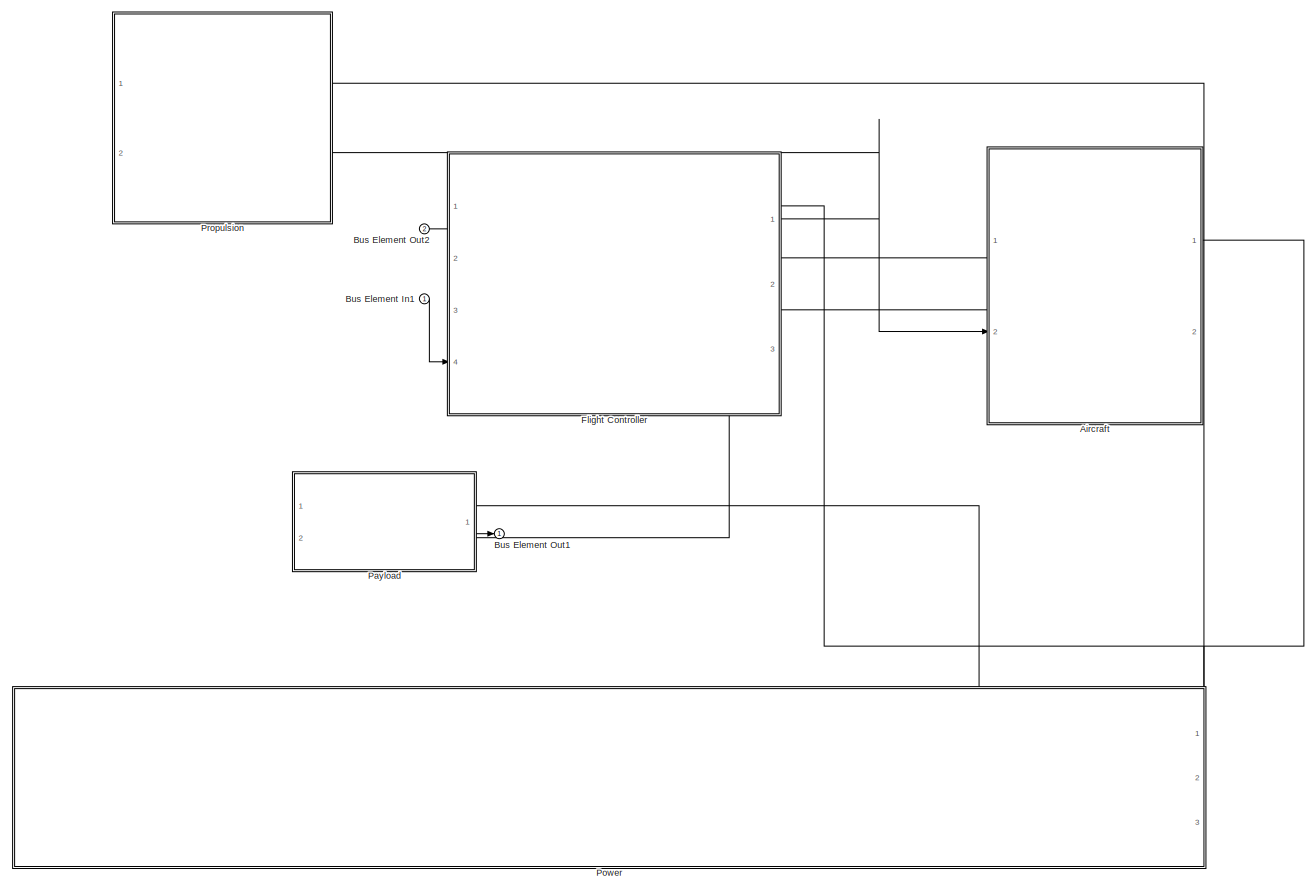
[diagram: root canvas - part 1/1, most of the canvas]
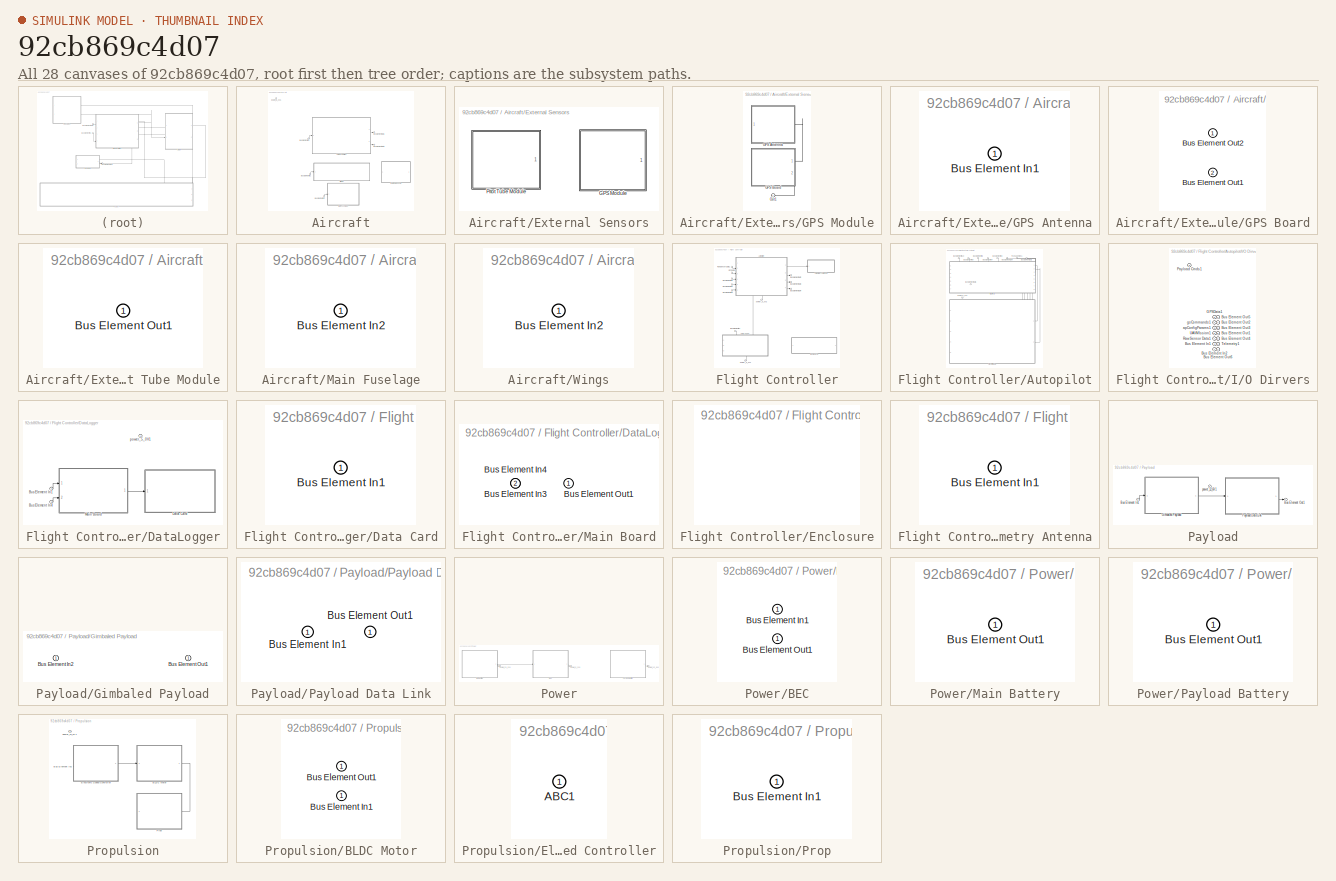
[diagram: thumbnail index - all 28 canvases of the model, root first then tree order]
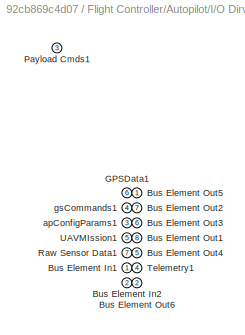
MODEL slx_92cb869c4d07
KIND model
CONFIG AbsTol = auto
CONFIG EnableMultiTasking = off
CONFIG FixedStep = auto
CONFIG MaxStep = auto
CONFIG MinStep = auto
CONFIG RelTol = 1e-3
CONFIG SampleTimeConstraint = Unconstrained
CONFIG Solver = VariableStepAuto
CONFIG SolverName = VariableStepAuto
CONFIG StartTime = 0.0
CONFIG StopTime = 10.0
WORKSPACE source: MAT-file member
WORKSPACE Var = 0
BLOCK [SubSystem] Aircraft
  PortSchema = {"entries":[{"content":{"headerSize":26,"margin":15,"minimumSpacing":25,"sides":[{"content":{"connectorIds":["In2","Out1","Out2"]},"type":"ConnectorPlacement.EquallySpacedRectSide","uuid":"5864bfaa-27bf-4dc4-ac35-2a67754e9235"},{"content":{"connectorIds":[],"side":"RIGHT"},"type":"ConnectorPlacement.EquallySpacedRectSide","uuid":"1b67a812-6201-4dd3-b7dd-96f38505ac3f"},{"content":{"connectorIds":[]...<+452ch>
  Ports = [2, 2]
  RequestExecContextInheritance = off
BLOCK [ModelReference] Aircraft/Aerodynamics
  ModelNameDialog = PlantModel
  ModelReferenceVersion = 1.375
  PortSchema = {"entries":[{"content":{"headerSize":38,"margin":15,"minimumSpacing":25,"sides":[{"content":{"connectorIds":["In1"]},"type":"ConnectorPlacement.EquallySpacedRectSide","uuid":"5864bfaa-27bf-4dc4-ac35-2a67754e9235"},{"content":{"connectorIds":["Out1","Out2"],"side":"RIGHT"},"type":"ConnectorPlacement.EquallySpacedRectSide","uuid":"1b67a812-6201-4dd3-b7dd-96f38505ac3f"},{"content":{"connectorIds":[],...<+302ch>
  Ports = [1, 2]
BLOCK [Inport] Aircraft/Bus Element In1
  IconDisplay = Port number
  Port = 2
BLOCK [Inport] Aircraft/Bus Element In2
  IconDisplay = Port number
  Port = 2
BLOCK [Inport] Aircraft/Bus Element In3
  IconDisplay = Port number
  Port = 2
BLOCK [Outport] Aircraft/Bus Element Out1
  IconDisplay = Port number
BLOCK [Outport] Aircraft/Bus Element Out2
  IconDisplay = Port number
  Port = 2
BLOCK [SubSystem] Aircraft/External Sensors
  PortSchema = {"entries":[{"content":{"headerSize":26,"margin":15,"minimumSpacing":25,"sides":[{"content":{"connectorIds":[]},"type":"ConnectorPlacement.EquallySpacedRectSide","uuid":"62bd5ee8-2365-4a2b-9d30-43e6a529a901"},{"content":{"connectorIds":[],"side":"RIGHT"},"type":"ConnectorPlacement.EquallySpacedRectSide","uuid":"ad573e81-da6c-48c9-9164-7d3bad2ceb97"},{"content":{"connectorIds":[],"side":"TOP"},"typ...<+284ch>
  Ports = []
  RequestExecContextInheritance = off
BLOCK [SubSystem] Aircraft/External Sensors/GPS Module
  PortSchema = {"entries":[{"content":{"headerSize":26,"margin":15,"minimumSpacing":25,"sides":[{"content":{"connectorIds":[]},"type":"ConnectorPlacement.EquallySpacedRectSide","uuid":"9f35dc00-989c-4612-aee9-27ffd041f5d2"},{"content":{"connectorIds":[],"side":"RIGHT"},"type":"ConnectorPlacement.EquallySpacedRectSide","uuid":"fc636a36-c80d-4d26-be49-cb148246bb8f"},{"content":{"connectorIds":[],"side":"TOP"},"typ...<+434ch>
  Ports = [0, 1]
  RequestExecContextInheritance = off
BLOCK [SubSystem] Aircraft/External Sensors/GPS Module/GPS Antenna
  PortSchema = {"entries":[{"content":{"headerSize":26,"margin":15,"minimumSpacing":25,"sides":[{"content":{"connectorIds":[]},"type":"ConnectorPlacement.EquallySpacedRectSide","uuid":"1d3f3a23-636b-441d-85a6-b75e05b18389"},{"content":{"connectorIds":["In1"],"side":"RIGHT"},"type":"ConnectorPlacement.EquallySpacedRectSide","uuid":"e22d7e46-f58c-4c9d-8892-998381cd60e3"},{"content":{"connectorIds":[],"side":"TOP"}...<+289ch>
  Ports = [1]
  RequestExecContextInheritance = off
BLOCK [Inport] Aircraft/External Sensors/GPS Module/GPS Antenna/Bus Element In1
  IconDisplay = Port number
BLOCK [SubSystem] Aircraft/External Sensors/GPS Module/GPS Board
  PortSchema = {"entries":[{"content":{"headerSize":26,"margin":15,"minimumSpacing":25,"sides":[{"content":{"connectorIds":[]},"type":"ConnectorPlacement.EquallySpacedRectSide","uuid":"288187f8-f80a-4535-8eff-6998f4e932c0"},{"content":{"connectorIds":["Out1"],"side":"RIGHT"},"type":"ConnectorPlacement.EquallySpacedRectSide","uuid":"d1e22774-cdd2-4e71-94b1-3e938d9d16f6"},{"content":{"connectorIds":[],"side":"TOP"...<+440ch>
  Ports = [0, 2]
  RequestExecContextInheritance = off
BLOCK [Outport] Aircraft/External Sensors/GPS Module/GPS Board/Bus Element Out1
  IconDisplay = Port number
  Port = 2
BLOCK [Outport] Aircraft/External Sensors/GPS Module/GPS Board/Bus Element Out2
  IconDisplay = Port number
BLOCK [Outport] Aircraft/External Sensors/GPS Module/Out1
  IconDisplay = Port number
BLOCK [SubSystem] Aircraft/External Sensors/Pitot Tube Module
  PortSchema = {"entries":[{"content":{"headerSize":26,"margin":15,"minimumSpacing":25,"sides":[{"content":{"connectorIds":[]},"type":"ConnectorPlacement.EquallySpacedRectSide","uuid":"288187f8-f80a-4535-8eff-6998f4e932c0"},{"content":{"connectorIds":[],"side":"RIGHT"},"type":"ConnectorPlacement.EquallySpacedRectSide","uuid":"d1e22774-cdd2-4e71-94b1-3e938d9d16f6"},{"content":{"connectorIds":[],"side":"TOP"},"typ...<+434ch>
  Ports = [0, 1]
  RequestExecContextInheritance = off
BLOCK [Outport] Aircraft/External Sensors/Pitot Tube Module/Bus Element Out1
  IconDisplay = Port number
BLOCK [SubSystem] Aircraft/Main Fuselage
  PortSchema = {"entries":[{"content":{"headerSize":26,"margin":15,"minimumSpacing":25,"sides":[{"content":{"connectorIds":["In1"]},"type":"ConnectorPlacement.EquallySpacedRectSide","uuid":"410c5b0f-08b5-48c1-aeab-ad32707f18cb"},{"content":{"connectorIds":[],"side":"RIGHT"},"type":"ConnectorPlacement.EquallySpacedRectSide","uuid":"175f376c-06cb-43d8-93cf-cfe74288c6ca"},{"content":{"connectorIds":[],"side":"TOP"}...<+289ch>  <repeated x3 — deduplicated; at blocks: Main Fuselage, Wings, Data Card>
  Ports = [1]
  RequestExecContextInheritance = off
BLOCK [Inport] Aircraft/Main Fuselage/Bus Element In2
  IconDisplay = Port number
BLOCK [SubSystem] Aircraft/Wings
  Ports = [1]
  RequestExecContextInheritance = off
BLOCK [Inport] Aircraft/Wings/Bus Element In2
  IconDisplay = Port number
BLOCK [Inport] Aircraft/power_5_0V1
  IconDisplay = Port number
BLOCK [Inport] Bus Element In1
  IconDisplay = Port number
BLOCK [Outport] Bus Element Out1
  IconDisplay = Port number
BLOCK [Outport] Bus Element Out2
  IconDisplay = Port number
  Port = 2
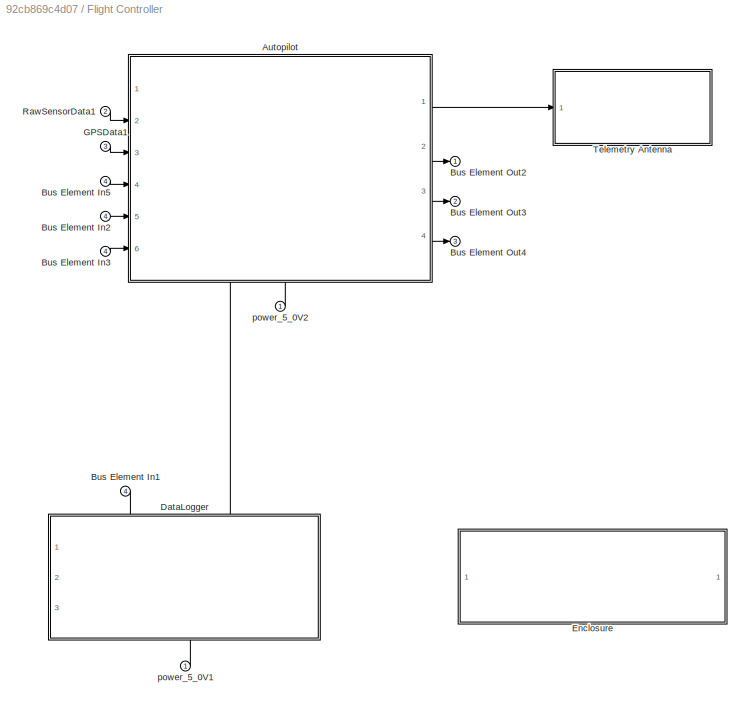
BLOCK [SubSystem] Flight Controller
  PortSchema = {"entries":[{"content":{"headerSize":26,"margin":15,"minimumSpacing":25,"sides":[{"content":{"connectorIds":["Out3","In4","Out2"]},"type":"ConnectorPlacement.EquallySpacedRectSide","uuid":"288187f8-f80a-4535-8eff-6998f4e932c0"},{"content":{"connectorIds":["Out1","In2","In3"],"side":"RIGHT"},"type":"ConnectorPlacement.EquallySpacedRectSide","uuid":"d1e22774-cdd2-4e71-94b1-3e938d9d16f6"},{"content":...<+470ch>
  Ports = [4, 3]
  RequestExecContextInheritance = off
BLOCK [SubSystem] Flight Controller/Autopilot
  PortSchema = {"entries":[{"content":{"headerSize":26,"margin":15,"minimumSpacing":25,"sides":[{"content":{"connectorIds":["In2","In3","In4","In5","In6"]},"type":"ConnectorPlacement.EquallySpacedRectSide","uuid":"288187f8-f80a-4535-8eff-6998f4e932c0"},{"content":{"connectorIds":["Out1","Out2","Out4","Out3"],"side":"RIGHT"},"type":"ConnectorPlacement.EquallySpacedRectSide","uuid":"d1e22774-cdd2-4e71-94b1-3e938d9...<+489ch>
  Ports = [6, 4]
  RequestExecContextInheritance = off
BLOCK [Inport] Flight Controller/Autopilot/Bus Element In10
  IconDisplay = Port number
  Port = 6
BLOCK [Inport] Flight Controller/Autopilot/Bus Element In3
  IconDisplay = Port number
  Port = 2
BLOCK [Inport] Flight Controller/Autopilot/Bus Element In7
  IconDisplay = Port number
  Port = 3
BLOCK [Inport] Flight Controller/Autopilot/Bus Element In8
  IconDisplay = Port number
  Port = 4
BLOCK [Inport] Flight Controller/Autopilot/Bus Element In9
  IconDisplay = Port number
  Port = 5
BLOCK [Outport] Flight Controller/Autopilot/Bus Element Out2
  IconDisplay = Port number
  Port = 2
BLOCK [Outport] Flight Controller/Autopilot/Bus Element Out4
  IconDisplay = Port number
  Port = 3
BLOCK [Outport] Flight Controller/Autopilot/Bus Element Out5
  IconDisplay = Port number
BLOCK [ModelReference] Flight Controller/Autopilot/Flight Firmware
  ModelNameDialog = AutopilotControlSystem
  ModelReferenceVersion = 1.361
  PortSchema = {"entries":[{"content":{"headerSize":38,"margin":15,"minimumSpacing":25,"sides":[{"content":{"connectorIds":["In1","In2","In3","In4","In5"]},"type":"ConnectorPlacement.EquallySpacedRectSide","uuid":"76636d8c-2a71-4cfe-9798-180c72f47694"},{"content":{"connectorIds":["Out1","Out2"],"side":"RIGHT"},"type":"ConnectorPlacement.EquallySpacedRectSide","uuid":"872f7c71-0239-4d56-8641-47d463e7d626"},{"cont...<+326ch>
  Ports = [5, 2]
BLOCK [SubSystem] Flight Controller/Autopilot/I//O Dirvers
  PortSchema = {"entries":[{"content":{"headerSize":26,"margin":15,"minimumSpacing":25,"sides":[{"content":{"connectorIds":["Out1","Out5","Out6","Out7","Out8"]},"type":"ConnectorPlacement.EquallySpacedRectSide","uuid":"76636d8c-2a71-4cfe-9798-180c72f47694"},{"content":{"connectorIds":["In2","In1"],"side":"RIGHT"},"type":"ConnectorPlacement.EquallySpacedRectSide","uuid":"872f7c71-0239-4d56-8641-47d463e7d626"},{"c...<+523ch>
  Ports = [7, 8]
  RequestExecContextInheritance = off
BLOCK [Inport] Flight Controller/Autopilot/I//O Dirvers/Bus Element In1
  IconDisplay = Port number
BLOCK [Inport] Flight Controller/Autopilot/I//O Dirvers/Bus Element In2
  IconDisplay = Port number
  Port = 2
BLOCK [Outport] Flight Controller/Autopilot/I//O Dirvers/Bus Element Out1
  IconDisplay = Port number
  Port = 8
BLOCK [Outport] Flight Controller/Autopilot/I//O Dirvers/Bus Element Out2
  IconDisplay = Port number
  Port = 7
BLOCK [Outport] Flight Controller/Autopilot/I//O Dirvers/Bus Element Out3
  IconDisplay = Port number
  Port = 6
BLOCK [Outport] Flight Controller/Autopilot/I//O Dirvers/Bus Element Out4
  IconDisplay = Port number
  Port = 5
BLOCK [Outport] Flight Controller/Autopilot/I//O Dirvers/Bus Element Out5
  IconDisplay = Port number
BLOCK [Outport] Flight Controller/Autopilot/I//O Dirvers/Bus Element Out6
  IconDisplay = Port number
  Port = 2
BLOCK [Inport] Flight Controller/Autopilot/I//O Dirvers/GPSData1
  IconDisplay = Port number
  Port = 6
BLOCK [Outport] Flight Controller/Autopilot/I//O Dirvers/Payload Cmds1
  IconDisplay = Port number
  Port = 3
BLOCK [Inport] Flight Controller/Autopilot/I//O Dirvers/Raw Sensor Data1
  IconDisplay = Port number
  Port = 7
BLOCK [Outport] Flight Controller/Autopilot/I//O Dirvers/Telemetry1
  IconDisplay = Port number
  Port = 4
BLOCK [Inport] Flight Controller/Autopilot/I//O Dirvers/UAVMIssion1
  IconDisplay = Port number
  Port = 5
BLOCK [Inport] Flight Controller/Autopilot/I//O Dirvers/apConfigParams1
  IconDisplay = Port number
  Port = 3
BLOCK [Inport] Flight Controller/Autopilot/I//O Dirvers/gsCommands1
  IconDisplay = Port number
  Port = 4
BLOCK [Outport] Flight Controller/Autopilot/Payload Cmds1
  IconDisplay = Port number
  Port = 4
BLOCK [Inport] Flight Controller/Autopilot/power_5_0V1
  IconDisplay = Port number
BLOCK [Inport] Flight Controller/Bus Element In1
  IconDisplay = Port number
  Port = 4
BLOCK [Inport] Flight Controller/Bus Element In2
  IconDisplay = Port number
  Port = 4
BLOCK [Inport] Flight Controller/Bus Element In3
  IconDisplay = Port number
  Port = 4
BLOCK [Inport] Flight Controller/Bus Element In5
  IconDisplay = Port number
  Port = 4
BLOCK [Outport] Flight Controller/Bus Element Out2
  IconDisplay = Port number
BLOCK [Outport] Flight Controller/Bus Element Out3
  IconDisplay = Port number
  Port = 2
BLOCK [Outport] Flight Controller/Bus Element Out4
  IconDisplay = Port number
  Port = 3
BLOCK [SubSystem] Flight Controller/DataLogger
  PortSchema = {"entries":[{"content":{"headerSize":26,"margin":15,"minimumSpacing":25,"sides":[{"content":{"connectorIds":[]},"type":"ConnectorPlacement.EquallySpacedRectSide","uuid":"410c5b0f-08b5-48c1-aeab-ad32707f18cb"},{"content":{"connectorIds":[],"side":"RIGHT"},"type":"ConnectorPlacement.EquallySpacedRectSide","uuid":"175f376c-06cb-43d8-93cf-cfe74288c6ca"},{"content":{"connectorIds":["In2","In3"],"side":...<+444ch>
  Ports = [3]
  RequestExecContextInheritance = off
BLOCK [Inport] Flight Controller/DataLogger/Bus Element In1
  IconDisplay = Port number
  Port = 2
BLOCK [Inport] Flight Controller/DataLogger/Bus Element In4
  IconDisplay = Port number
  Port = 3
BLOCK [SubSystem] Flight Controller/DataLogger/Data Card
  Ports = [1]
  RequestExecContextInheritance = off
BLOCK [Inport] Flight Controller/DataLogger/Data Card/Bus Element In1
  IconDisplay = Port number
BLOCK [SubSystem] Flight Controller/DataLogger/Main Board
  PortSchema = {"entries":[{"content":{"headerSize":26,"margin":15,"minimumSpacing":25,"sides":[{"content":{"connectorIds":["In1","In2"]},"type":"ConnectorPlacement.EquallySpacedRectSide","uuid":"410c5b0f-08b5-48c1-aeab-ad32707f18cb"},{"content":{"connectorIds":["Out1"],"side":"RIGHT"},"type":"ConnectorPlacement.EquallySpacedRectSide","uuid":"175f376c-06cb-43d8-93cf-cfe74288c6ca"},{"content":{"connectorIds":[],"...<+301ch>
  Ports = [2, 1]
  RequestExecContextInheritance = off
BLOCK [Inport] Flight Controller/DataLogger/Main Board/Bus Element In3
  IconDisplay = Port number
BLOCK [Inport] Flight Controller/DataLogger/Main Board/Bus Element In4
  IconDisplay = Port number
  Port = 2
BLOCK [Outport] Flight Controller/DataLogger/Main Board/Bus Element Out1
  IconDisplay = Port number
BLOCK [Inport] Flight Controller/DataLogger/power_5_0V1
  IconDisplay = Port number
BLOCK [SubSystem] Flight Controller/Enclosure
  PortSchema = {"entries":[{"content":{"headerSize":26,"margin":15,"minimumSpacing":25,"sides":[{"content":{"connectorIds":[]},"type":"ConnectorPlacement.EquallySpacedRectSide","uuid":"1d3f3a23-636b-441d-85a6-b75e05b18389"},{"content":{"connectorIds":[],"side":"RIGHT"},"type":"ConnectorPlacement.EquallySpacedRectSide","uuid":"e22d7e46-f58c-4c9d-8892-998381cd60e3"},{"content":{"connectorIds":[],"side":"TOP"},"typ...<+284ch>
  Ports = []
  RequestExecContextInheritance = off
BLOCK [Inport] Flight Controller/GPSData1
  IconDisplay = Port number
  Port = 3
BLOCK [Inport] Flight Controller/RawSensorData1
  IconDisplay = Port number
  Port = 2
BLOCK [SubSystem] Flight Controller/Telemetry Antenna
  PortSchema = {"entries":[{"content":{"headerSize":26,"margin":15,"minimumSpacing":25,"sides":[{"content":{"connectorIds":["In1"]},"type":"ConnectorPlacement.EquallySpacedRectSide","uuid":"1d3f3a23-636b-441d-85a6-b75e05b18389"},{"content":{"connectorIds":[],"side":"RIGHT"},"type":"ConnectorPlacement.EquallySpacedRectSide","uuid":"e22d7e46-f58c-4c9d-8892-998381cd60e3"},{"content":{"connectorIds":[],"side":"TOP"}...<+289ch>
  Ports = [1]
  RequestExecContextInheritance = off
BLOCK [Inport] Flight Controller/Telemetry Antenna/Bus Element In1
  IconDisplay = Port number
BLOCK [Inport] Flight Controller/power_5_0V1
  IconDisplay = Port number
BLOCK [Inport] Flight Controller/power_5_0V2
  IconDisplay = Port number
BLOCK [SubSystem] Payload
  PortSchema = {"entries":[{"content":{"headerSize":26,"margin":15,"minimumSpacing":25,"sides":[{"content":{"connectorIds":[]},"type":"ConnectorPlacement.EquallySpacedRectSide","uuid":"288187f8-f80a-4535-8eff-6998f4e932c0"},{"content":{"connectorIds":["Out1"],"side":"RIGHT"},"type":"ConnectorPlacement.EquallySpacedRectSide","uuid":"d1e22774-cdd2-4e71-94b1-3e938d9d16f6"},{"content":{"connectorIds":["In2"],"side":...<+444ch>
  Ports = [2, 1]
  RequestExecContextInheritance = off
BLOCK [Inport] Payload/Bus Element In1
  IconDisplay = Port number
  Port = 2
BLOCK [Outport] Payload/Bus Element Out1
  IconDisplay = Port number
BLOCK [SubSystem] Payload/Gimbaled Payload
  PortSchema = {"entries":[{"content":{"headerSize":26,"margin":15,"minimumSpacing":25,"sides":[{"content":{"connectorIds":["In1"]},"type":"ConnectorPlacement.EquallySpacedRectSide","uuid":"288187f8-f80a-4535-8eff-6998f4e932c0"},{"content":{"connectorIds":["Out1"],"side":"RIGHT"},"type":"ConnectorPlacement.EquallySpacedRectSide","uuid":"d1e22774-cdd2-4e71-94b1-3e938d9d16f6"},{"content":{"connectorIds":[],"side":...<+295ch>
  Ports = [1, 1]
  RequestExecContextInheritance = off
BLOCK [Inport] Payload/Gimbaled Payload/Bus Element In2
  IconDisplay = Port number
BLOCK [Outport] Payload/Gimbaled Payload/Bus Element Out1
  IconDisplay = Port number
BLOCK [SubSystem] Payload/Payload Data Link
  PortSchema = {"entries":[{"content":{"headerSize":26,"margin":15,"minimumSpacing":25,"sides":[{"content":{"connectorIds":["In1"]},"type":"ConnectorPlacement.EquallySpacedRectSide","uuid":"288187f8-f80a-4535-8eff-6998f4e932c0"},{"content":{"connectorIds":["Out1"],"side":"RIGHT"},"type":"ConnectorPlacement.EquallySpacedRectSide","uuid":"d1e22774-cdd2-4e71-94b1-3e938d9d16f6"},{"content":{"connectorIds":[],"side":...<+295ch>
  Ports = [1, 1]
  RequestExecContextInheritance = off
BLOCK [Inport] Payload/Payload Data Link/Bus Element In1
  IconDisplay = Port number
BLOCK [Outport] Payload/Payload Data Link/Bus Element Out1
  IconDisplay = Port number
BLOCK [Inport] Payload/power_12_6V1
  IconDisplay = Port number
BLOCK [SubSystem] Power
  PortSchema = {"entries":[{"content":{"headerSize":26,"margin":15,"minimumSpacing":25,"sides":[{"content":{"connectorIds":[]},"type":"ConnectorPlacement.EquallySpacedRectSide","uuid":"76636d8c-2a71-4cfe-9798-180c72f47694"},{"content":{"connectorIds":[],"side":"RIGHT"},"type":"ConnectorPlacement.EquallySpacedRectSide","uuid":"872f7c71-0239-4d56-8641-47d463e7d626"},{"content":{"connectorIds":["Out3","Out2","Out1"...<+304ch>
  Ports = [0, 3]
  RequestExecContextInheritance = off
BLOCK [SubSystem] Power/BEC
  PortSchema = {"entries":[{"content":{"headerSize":26,"margin":15,"minimumSpacing":25,"sides":[{"content":{"connectorIds":["In1"]},"type":"ConnectorPlacement.EquallySpacedRectSide","uuid":"76636d8c-2a71-4cfe-9798-180c72f47694"},{"content":{"connectorIds":["Out1"],"side":"RIGHT"},"type":"ConnectorPlacement.EquallySpacedRectSide","uuid":"872f7c71-0239-4d56-8641-47d463e7d626"},{"content":{"connectorIds":[],"side":...<+295ch>
  Ports = [1, 1]
  RequestExecContextInheritance = off
BLOCK [Inport] Power/BEC/Bus Element In1
  IconDisplay = Port number
BLOCK [Outport] Power/BEC/Bus Element Out1
  IconDisplay = Port number
BLOCK [SubSystem] Power/Main Battery
  PortSchema = {"entries":[{"content":{"headerSize":26,"margin":15,"minimumSpacing":25,"sides":[{"content":{"connectorIds":[]},"type":"ConnectorPlacement.EquallySpacedRectSide","uuid":"76636d8c-2a71-4cfe-9798-180c72f47694"},{"content":{"connectorIds":["Out1"],"side":"RIGHT"},"type":"ConnectorPlacement.EquallySpacedRectSide","uuid":"872f7c71-0239-4d56-8641-47d463e7d626"},{"content":{"connectorIds":[],"side":"TOP"...<+290ch>
  Ports = [0, 1]
  RequestExecContextInheritance = off
BLOCK [Outport] Power/Main Battery/Bus Element Out1
  IconDisplay = Port number
BLOCK [SubSystem] Power/Payload Battery
  PortSchema = {"entries":[{"content":{"headerSize":26,"margin":15,"minimumSpacing":25,"sides":[{"content":{"connectorIds":[]},"type":"ConnectorPlacement.EquallySpacedRectSide","uuid":"76636d8c-2a71-4cfe-9798-180c72f47694"},{"content":{"connectorIds":["Out1"],"side":"RIGHT"},"type":"ConnectorPlacement.EquallySpacedRectSide","uuid":"872f7c71-0239-4d56-8641-47d463e7d626"},{"content":{"connectorIds":[],"side":"TOP"...<+290ch>
  Ports = [0, 1]
  RequestExecContextInheritance = off
BLOCK [Outport] Power/Payload Battery/Bus Element Out1
  IconDisplay = Port number
BLOCK [Outport] Power/power_12_6V1
  IconDisplay = Port number
  Port = 2
BLOCK [Outport] Power/power_21_0V1
  IconDisplay = Port number
  Port = 3
BLOCK [Outport] Power/power_5_0V1
  IconDisplay = Port number
BLOCK [SubSystem] Propulsion
  PortSchema = {"entries":[{"content":{"headerSize":26,"margin":15,"minimumSpacing":25,"sides":[{"content":{"connectorIds":[]},"type":"ConnectorPlacement.EquallySpacedRectSide","uuid":"288187f8-f80a-4535-8eff-6998f4e932c0"},{"content":{"connectorIds":["In2"],"side":"RIGHT"},"type":"ConnectorPlacement.EquallySpacedRectSide","uuid":"d1e22774-cdd2-4e71-94b1-3e938d9d16f6"},{"content":{"connectorIds":[],"side":"TOP"}...<+438ch>
  Ports = [2]
  RequestExecContextInheritance = off
BLOCK [SubSystem] Propulsion/BLDC Motor
  PortSchema = {"entries":[{"content":{"headerSize":26,"margin":15,"minimumSpacing":25,"sides":[{"content":{"connectorIds":["In1"]},"type":"ConnectorPlacement.EquallySpacedRectSide","uuid":"d39ea880-6caf-4145-b7f0-b92ac95b231c"},{"content":{"connectorIds":["Out1"],"side":"RIGHT"},"type":"ConnectorPlacement.EquallySpacedRectSide","uuid":"9a787458-5dfd-4b88-89fa-fa737c2416b2"},{"content":{"connectorIds":[],"side":...<+295ch>
  Ports = [1, 1]
  RequestExecContextInheritance = off
BLOCK [Inport] Propulsion/BLDC Motor/Bus Element In1
  IconDisplay = Port number
BLOCK [Outport] Propulsion/BLDC Motor/Bus Element Out1
  IconDisplay = Port number
BLOCK [Inport] Propulsion/Bus Element In2
  IconDisplay = Port number
  Port = 2
BLOCK [SubSystem] Propulsion/Electronic Speed Controller
  PortSchema = {"entries":[{"content":{"headerSize":26,"margin":15,"minimumSpacing":25,"sides":[{"content":{"connectorIds":[]},"type":"ConnectorPlacement.EquallySpacedRectSide","uuid":"56b16ad7-3e6c-4ed0-bb60-7867eebb2ed0"},{"content":{"connectorIds":["Out1"],"side":"RIGHT"},"type":"ConnectorPlacement.EquallySpacedRectSide","uuid":"9cada59e-5a3c-4135-93c6-afa50d8788cc"},{"content":{"connectorIds":[],"side":"TOP"...<+290ch>
  Ports = [0, 1]
  RequestExecContextInheritance = off
BLOCK [Outport] Propulsion/Electronic Speed Controller/ABC1
  IconDisplay = Port number
BLOCK [SubSystem] Propulsion/Prop
  PortSchema = {"entries":[{"content":{"headerSize":26,"margin":15,"minimumSpacing":25,"sides":[{"content":{"connectorIds":[]},"type":"ConnectorPlacement.EquallySpacedRectSide","uuid":"d39ea880-6caf-4145-b7f0-b92ac95b231c"},{"content":{"connectorIds":["In1"],"side":"RIGHT"},"type":"ConnectorPlacement.EquallySpacedRectSide","uuid":"9a787458-5dfd-4b88-89fa-fa737c2416b2"},{"content":{"connectorIds":[],"side":"TOP"}...<+289ch>
  Ports = [1]
  RequestExecContextInheritance = off
BLOCK [Inport] Propulsion/Prop/Bus Element In1
  IconDisplay = Port number
BLOCK [Inport] Propulsion/power_21_0V1
  IconDisplay = Port number
LINE Aircraft/Aerodynamics:1 -> Aircraft/Bus Element Out1:1
LINE Aircraft/Aerodynamics:2 -> Aircraft/Bus Element Out2:1
LINE Aircraft/Bus Element In1:1 -> Aircraft/Aerodynamics:1
LINE Aircraft/Bus Element In2:1 -> Aircraft/Wings:1
LINE Aircraft/Bus Element In3:1 -> Aircraft/Main Fuselage:1
LINE Aircraft/External Sensors/GPS Module/GPS Board:1 -> Aircraft/External Sensors/GPS Module/GPS Antenna:1
LINE Aircraft/External Sensors/GPS Module/GPS Board:2 -> Aircraft/External Sensors/GPS Module/Out1:1
LINE Aircraft:1 -> Flight Controller:2
LINE Aircraft:2 -> Flight Controller:3
LINE Bus Element In1:1 -> Flight Controller:4
LINE Flight Controller/Autopilot/Bus Element In10:1 -> Flight Controller/Autopilot/I//O Dirvers:3
LINE Flight Controller/Autopilot/Bus Element In3:1 -> Flight Controller/Autopilot/I//O Dirvers:7
LINE Flight Controller/Autopilot/Bus Element In7:1 -> Flight Controller/Autopilot/I//O Dirvers:6
LINE Flight Controller/Autopilot/Bus Element In8:1 -> Flight Controller/Autopilot/I//O Dirvers:5
LINE Flight Controller/Autopilot/Bus Element In9:1 -> Flight Controller/Autopilot/I//O Dirvers:4
LINE Flight Controller/Autopilot/Flight Firmware:1 -> Flight Controller/Autopilot/I//O Dirvers:1
LINE Flight Controller/Autopilot/Flight Firmware:2 -> Flight Controller/Autopilot/I//O Dirvers:2
LINE Flight Controller/Autopilot/I//O Dirvers/Bus Element In1:1 -> Flight Controller/Autopilot/I//O Dirvers/Telemetry1:1
LINE Flight Controller/Autopilot/I//O Dirvers/Bus Element In2:1 -> Flight Controller/Autopilot/I//O Dirvers/Bus Element Out6:1
LINE Flight Controller/Autopilot/I//O Dirvers/GPSData1:1 -> Flight Controller/Autopilot/I//O Dirvers/Bus Element Out5:1
LINE Flight Controller/Autopilot/I//O Dirvers/Raw Sensor Data1:1 -> Flight Controller/Autopilot/I//O Dirvers/Bus Element Out4:1
LINE Flight Controller/Autopilot/I//O Dirvers/UAVMIssion1:1 -> Flight Controller/Autopilot/I//O Dirvers/Bus Element Out1:1
LINE Flight Controller/Autopilot/I//O Dirvers/apConfigParams1:1 -> Flight Controller/Autopilot/I//O Dirvers/Bus Element Out3:1
LINE Flight Controller/Autopilot/I//O Dirvers/gsCommands1:1 -> Flight Controller/Autopilot/I//O Dirvers/Bus Element Out2:1
LINE Flight Controller/Autopilot/I//O Dirvers:1 -> Flight Controller/Autopilot/Flight Firmware:5
LINE Flight Controller/Autopilot/I//O Dirvers:2 -> Flight Controller/Autopilot/Bus Element Out2:1
LINE Flight Controller/Autopilot/I//O Dirvers:3 -> Flight Controller/Autopilot/Payload Cmds1:1
LINE Flight Controller/Autopilot/I//O Dirvers:4 -> Flight Controller/Autopilot/Bus Element Out4:1
LINE Flight Controller/Autopilot/I//O Dirvers:5 -> Flight Controller/Autopilot/Flight Firmware:4
LINE Flight Controller/Autopilot/I//O Dirvers:6 -> Flight Controller/Autopilot/Flight Firmware:3
LINE Flight Controller/Autopilot/I//O Dirvers:7 -> Flight Controller/Autopilot/Flight Firmware:2
LINE Flight Controller/Autopilot/I//O Dirvers:8 -> Flight Controller/Autopilot/Flight Firmware:1
LINE Flight Controller/Autopilot:1 -> Flight Controller/Telemetry Antenna:1
LINE Flight Controller/Autopilot:2 -> Flight Controller/Bus Element Out2:1
NET Flight Controller/Autopilot:3 -> Flight Controller/Bus Element Out4:1, Flight Controller/DataLogger:3
LINE Flight Controller/Autopilot:4 -> Flight Controller/Bus Element Out3:1
LINE Flight Controller/Bus Element In1:1 -> Flight Controller/DataLogger:2
LINE Flight Controller/Bus Element In2:1 -> Flight Controller/Autopilot:5
LINE Flight Controller/Bus Element In3:1 -> Flight Controller/Autopilot:6
LINE Flight Controller/Bus Element In5:1 -> Flight Controller/Autopilot:4
LINE Flight Controller/DataLogger/Bus Element In1:1 -> Flight Controller/DataLogger/Main Board:1
LINE Flight Controller/DataLogger/Bus Element In4:1 -> Flight Controller/DataLogger/Main Board:2
LINE Flight Controller/DataLogger/Main Board:1 -> Flight Controller/DataLogger/Data Card:1
LINE Flight Controller/GPSData1:1 -> Flight Controller/Autopilot:3
LINE Flight Controller/RawSensorData1:1 -> Flight Controller/Autopilot:2
LINE Flight Controller/power_5_0V1:1 -> Flight Controller/DataLogger:1
LINE Flight Controller/power_5_0V2:1 -> Flight Controller/Autopilot:1
NET Flight Controller:1 -> Aircraft:2, Propulsion:2
LINE Flight Controller:2 -> Payload:2
LINE Flight Controller:3 -> Bus Element Out2:1
LINE Payload/Bus Element In1:1 -> Payload/Gimbaled Payload:1
LINE Payload/Gimbaled Payload:1 -> Payload/Payload Data Link:1
LINE Payload/Payload Data Link:1 -> Payload/Bus Element Out1:1
LINE Payload:1 -> Bus Element Out1:1
LINE Power/BEC:1 -> Power/power_5_0V1:1
NET Power/Main Battery:1 -> Power/BEC:1, Power/power_21_0V1:1
LINE Power/Payload Battery:1 -> Power/power_12_6V1:1
NET Power:1 -> Aircraft:1, Flight Controller:1
LINE Power:2 -> Payload:1
LINE Power:3 -> Propulsion:1
LINE Propulsion/BLDC Motor:1 -> Propulsion/Prop:1
LINE Propulsion/Electronic Speed Controller:1 -> Propulsion/BLDC Motor:1
note: NET lines group one-source signal fan-out (src -> all destinations, sorted); 1:1 wires keep LINE
